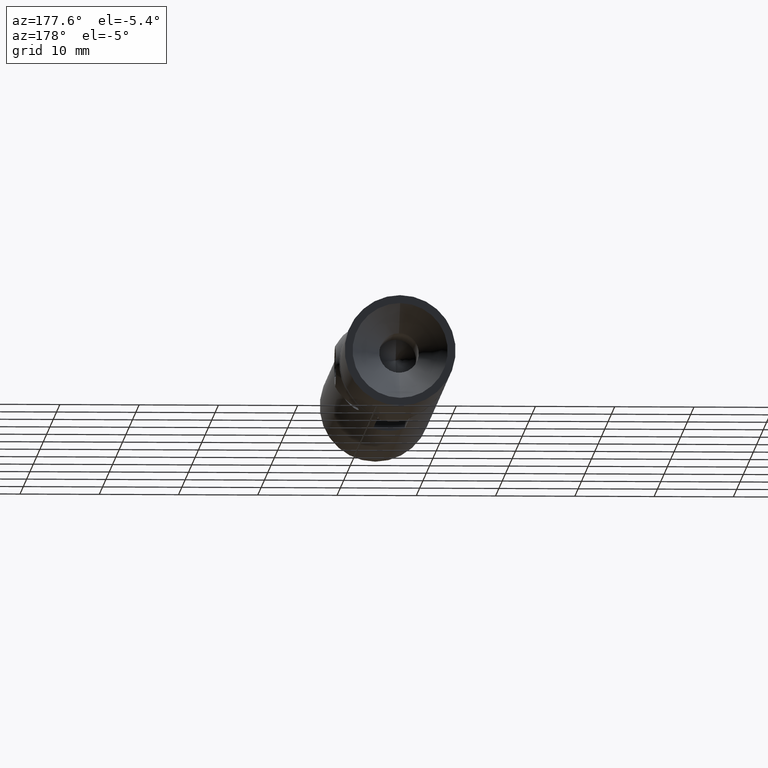
[diagram: clean part render]
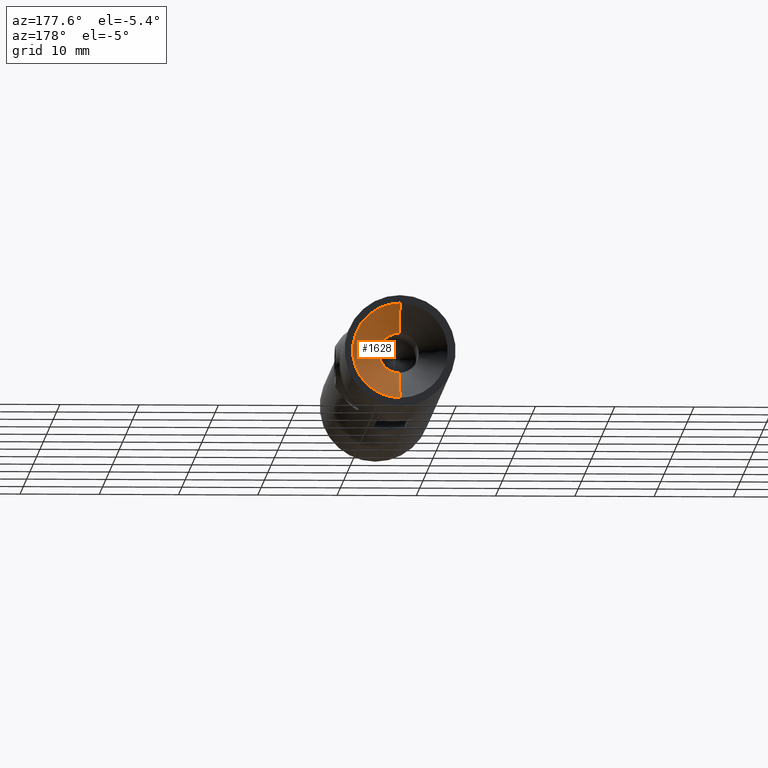
[diagram: same view with one face highlighted and labeled with its STEP entity id]
A machine part, auxiliary view. The second image highlights one B-rep face of the part: STEP entity #1628.
In plain terms, the highlighted conical surface has half-angle 45 deg.
Its self-contained STEP definition (entity closure, byte-faithful):
#70 = AXIS2_PLACEMENT_3D ( 'NONE', #1415, #999, #1189 ) ;
#267 = EDGE_CURVE ( 'NONE', #2782, #1597, #1624, .T. ) ;
#284 = DIRECTION ( 'NONE',  ( 0.0000000000000000000, 1.000000000000000000, 0.0000000000000000000 ) ) ;
#292 = DIRECTION ( 'NONE',  ( 8.659560562354948900E-017, 0.7071067811865464600, -0.7071067811865486800 ) ) ;
#409 = LINE ( 'NONE', #2698, #811 ) ;
#688 = AXIS2_PLACEMENT_3D ( 'NONE', #2243, #284, #2643 ) ;
#729 = EDGE_CURVE ( 'NONE', #2295, #2744, #1276, .T. ) ;
#766 = CARTESIAN_POINT ( 'NONE',  ( 5.204748896376255600E-016, 24.99999999999999300, -2.499999999999993300 ) ) ;
#811 = VECTOR ( 'NONE', #292, 999.9999999999998900 ) ;
#916 = CARTESIAN_POINT ( 'NONE',  ( 0.0000000000000000000, 28.49999999999999600, 6.000000000000010700 ) ) ;
#962 = AXIS2_PLACEMENT_3D ( 'NONE', #2246, #2030, #2692 ) ;
#999 = DIRECTION ( 'NONE',  ( 0.0000000000000000000, 1.000000000000000000, 0.0000000000000000000 ) ) ;
#1189 = DIRECTION ( 'NONE',  ( 0.0000000000000000000, 0.0000000000000000000, 1.000000000000000000 ) ) ;
#1221 = EDGE_CURVE ( 'NONE', #1597, #2295, #1855, .T. ) ;
#1276 = CIRCLE ( 'NONE', #70, 6.000000000000010700 ) ;
#1398 = EDGE_LOOP ( 'NONE', ( #1567, #1766, #2521, #1618 ) ) ;
#1415 = CARTESIAN_POINT ( 'NONE',  ( 0.0000000000000000000, 28.49999999999999600, 0.0000000000000000000 ) ) ;
#1567 = ORIENTED_EDGE ( 'NONE', *, *, #2765, .F. ) ;
#1597 = VERTEX_POINT ( 'NONE', #2442 ) ;
#1618 = ORIENTED_EDGE ( 'NONE', *, *, #729, .T. ) ;
#1624 = CIRCLE ( 'NONE', #962, 2.499999999999997800 ) ;
#1628 = ADVANCED_FACE ( 'NONE', ( #1720 ), #1890, .F. ) ;
#1720 = FACE_OUTER_BOUND ( 'NONE', #1398, .T. ) ;
#1766 = ORIENTED_EDGE ( 'NONE', *, *, #267, .T. ) ;
#1822 = CARTESIAN_POINT ( 'NONE',  ( 7.347880794884132600E-016, 28.49999999999999600, -6.000000000000010700 ) ) ;
#1855 = LINE ( 'NONE', #2408, #2140 ) ;
#1890 = CONICAL_SURFACE ( 'NONE', #688, 6.000000000000010700, 0.7853981633974489500 ) ;
#2002 = DIRECTION ( 'NONE',  ( 0.0000000000000000000, 0.7071067811865464600, 0.7071067811865486800 ) ) ;
#2030 = DIRECTION ( 'NONE',  ( -0.0000000000000000000, -1.000000000000000000, -0.0000000000000000000 ) ) ;
#2140 = VECTOR ( 'NONE', #2002, 999.9999999999998900 ) ;
#2243 = CARTESIAN_POINT ( 'NONE',  ( 0.0000000000000000000, 28.49999999999999600, 0.0000000000000000000 ) ) ;
#2246 = CARTESIAN_POINT ( 'NONE',  ( 0.0000000000000000000, 24.99999999999999300, 0.0000000000000000000 ) ) ;
#2295 = VERTEX_POINT ( 'NONE', #916 ) ;
#2408 = CARTESIAN_POINT ( 'NONE',  ( 0.0000000000000000000, 28.49999999999999600, 6.000000000000010700 ) ) ;
#2442 = CARTESIAN_POINT ( 'NONE',  ( 0.0000000000000000000, 24.99999999999999300, 2.499999999999997800 ) ) ;
#2521 = ORIENTED_EDGE ( 'NONE', *, *, #1221, .T. ) ;
#2643 = DIRECTION ( 'NONE',  ( 0.0000000000000000000, 0.0000000000000000000, 1.000000000000000000 ) ) ;
#2692 = DIRECTION ( 'NONE',  ( 0.0000000000000000000, 0.0000000000000000000, 1.000000000000000000 ) ) ;
#2698 = CARTESIAN_POINT ( 'NONE',  ( 7.347880794884132600E-016, 28.49999999999999600, -6.000000000000010700 ) ) ;
#2744 = VERTEX_POINT ( 'NONE', #1822 ) ;
#2765 = EDGE_CURVE ( 'NONE', #2782, #2744, #409, .T. ) ;
#2782 = VERTEX_POINT ( 'NONE', #766 ) ;